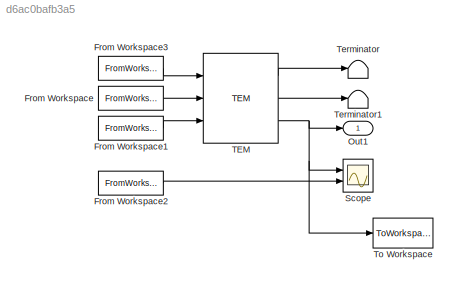
MODEL slx_d6ac0bafb3a5
KIND model
CONFIG AbsTol = auto
CONFIG FixedStep = 1
CONFIG MaxStep = auto
CONFIG MinStep = auto
CONFIG RelTol = 1e-3
CONFIG SampleTimeConstraint = Unconstrained
CONFIG Solver = ode3
CONFIG SolverMode = Auto
CONFIG SolverName = ode3
CONFIG StartTime = 0.0
CONFIG StopTime = 94
BLOCK [FromWorkspace] From Workspace
  SampleTime = 0
  VariableName = T_h
  ZeroCross = on
BLOCK [FromWorkspace] From Workspace1
  SampleTime = 0
  VariableName = T_c
  ZeroCross = on
BLOCK [FromWorkspace] From Workspace2
  SampleTime = 0
  VariableName = u_ocv
  ZeroCross = on
BLOCK [FromWorkspace] From Workspace3
  SampleTime = 0
  VariableName = I
  ZeroCross = on
BLOCK [Outport] Out1
  IconDisplay = Port number
BLOCK [Scope] Scope
  Floating = off
  NumInputPorts = 2
  Ports = [2]
  TimeRange = 159
  YMax = 380~7
  YMin = 300~0
BLOCK [Reference] TEM  REF=LU_TEG/TEM
  Ports = [3, 3]
  SourceBlock = LU_TEG/TEM
  Tune_er = Tune_er
  Tune_tr = Tune_tr
  a = a
  ct1 = ct1
  ct2 = ct2
  f = f
  l = l
  l_cw = l_cw
  n = n
BLOCK [Terminator] Terminator
BLOCK [Terminator] Terminator1
BLOCK [ToWorkspace] To Workspace
  FixptAsFi = on
  MaxDataPoints = inf
  Ports = [1]
  SampleTime = -1
  Save2DSignal = 3-D array (concatenate along third dimension)
  SaveFormat = Structure With Time
  VariableName = u
LINE From Workspace1:1 -> TEM:3
LINE From Workspace2:1 -> Scope:2
LINE From Workspace3:1 -> TEM:1
LINE From Workspace:1 -> TEM:2
LINE TEM:1 -> Terminator:1
LINE TEM:2 -> Terminator1:1
NET TEM:3 -> Out1:1, Scope:1, To Workspace:1
note: NET lines group one-source signal fan-out (src -> all destinations, sorted); 1:1 wires keep LINE
